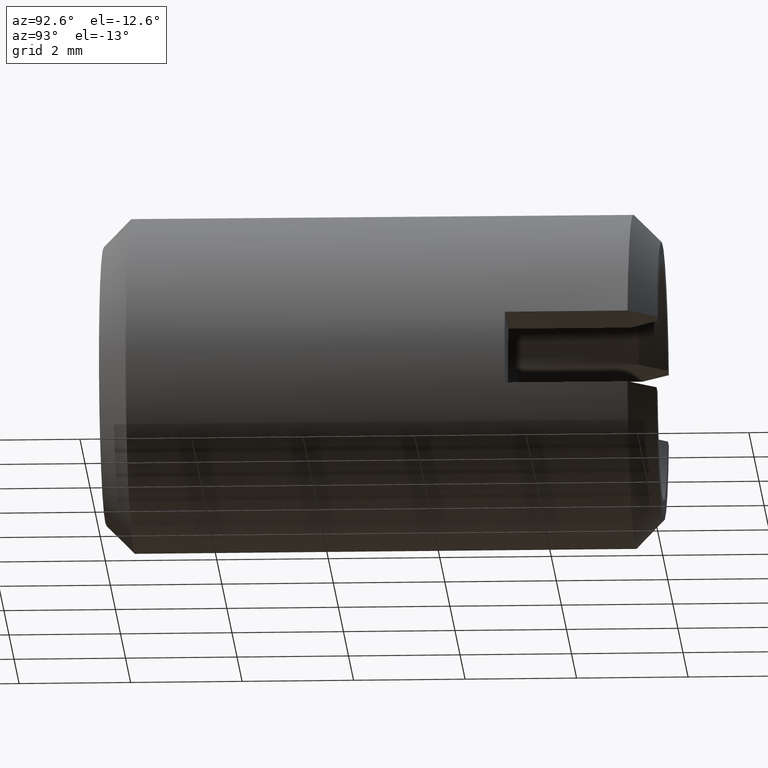
[diagram: clean part render]
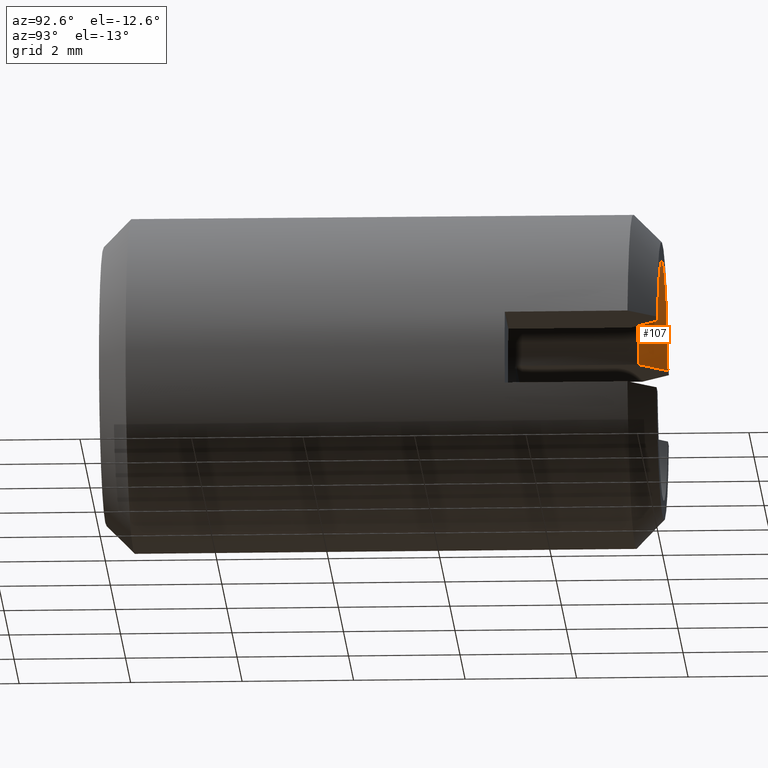
[diagram: same view with one face highlighted and labeled with its STEP entity id]
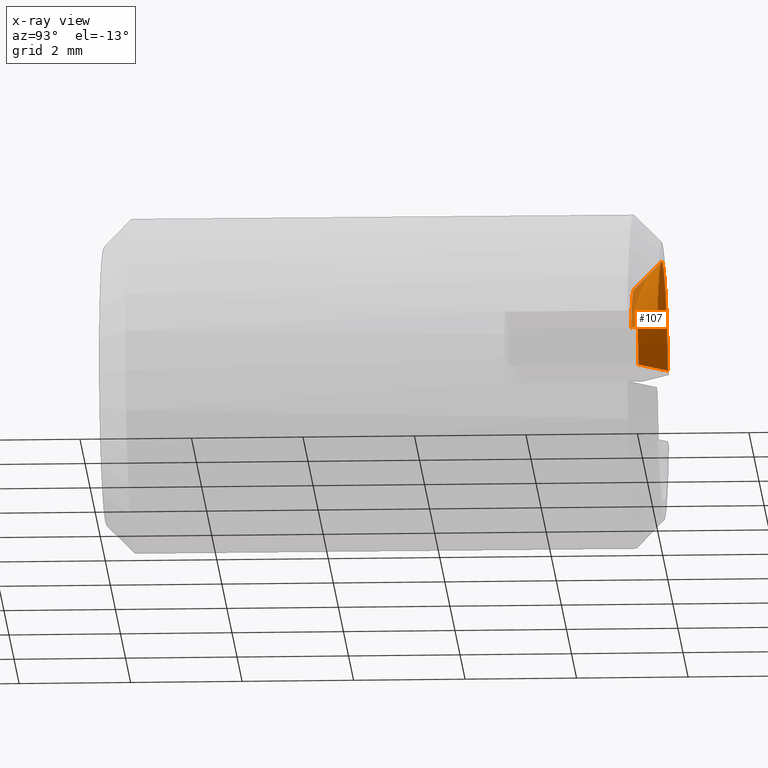
[diagram: x-ray of the same camera — body ghosted, the highlighted face saturated]
A machine part, auxiliary view. The second image highlights one B-rep face of the part: STEP entity #107.
The next image is the same camera in x-ray: the body ghosted, the highlighted face saturated — about 6% of this face is hidden behind the body in this view.
In plain terms, the highlighted conical surface has half-angle 45 deg.
Its self-contained STEP definition (entity closure, byte-faithful):
#107 = ADVANCED_FACE ( 'NONE', ( #12632 ), #9221, .F. ) ;
#389 = DIRECTION ( 'NONE',  ( 0.0000000000000000000, 0.0000000000000000000, 1.000000000000000000 ) ) ;
#647 = CARTESIAN_POINT ( 'NONE',  ( 1.516575088810305100, 9.500000000000000000, 0.6499999999999998000 ) ) ;
#1021 = CARTESIAN_POINT ( 'NONE',  ( 0.0000000000000000000, 9.500000000000000000, 0.0000000000000000000 ) ) ;
#1409 = B_SPLINE_CURVE_WITH_KNOTS ( 'NONE', 3,
 ( #3613, #6119, #3714, #14577 ),
 .UNSPECIFIED., .F., .F.,
 ( 4, 4 ),
 ( 2.168404344971008600E-019, 0.0007306790628121094900 ),
 .UNSPECIFIED. ) ;
#2270 = EDGE_CURVE ( 'NONE', #10755, #9831, #3438, .T. ) ;
#2414 = EDGE_CURVE ( 'NONE', #13921, #10755, #10904, .T. ) ;
#2890 = CARTESIAN_POINT ( 'NONE',  ( -1.516575088810305100, 9.500000000000000000, 0.6500000000000001300 ) ) ;
#3305 = CARTESIAN_POINT ( 'NONE',  ( 2.049390153191919000, 10.00000000000000000, 0.6500000000000000200 ) ) ;
#3438 = B_SPLINE_CURVE_WITH_KNOTS ( 'NONE', 3,
 ( #4055, #8897, #4208, #2890 ),
 .UNSPECIFIED., .F., .F.,
 ( 4, 4 ),
 ( 0.0000000000000000000, 0.0007306790628121099300 ),
 .UNSPECIFIED. ) ;
#3613 = CARTESIAN_POINT ( 'NONE',  ( 1.516575088810305100, 9.500000000000000000, 0.6499999999999998000 ) ) ;
#3714 = CARTESIAN_POINT ( 'NONE',  ( 1.873091889638334800, 9.831951662627185200, 0.6500000000000000200 ) ) ;
#3794 = DIRECTION ( 'NONE',  ( 0.0000000000000000000, 1.000000000000000000, 0.0000000000000000000 ) ) ;
#3999 = DIRECTION ( 'NONE',  ( 0.0000000000000000000, 1.000000000000000000, 0.0000000000000000000 ) ) ;
#4055 = CARTESIAN_POINT ( 'NONE',  ( -2.049390153191918500, 10.00000000000000000, 0.6500000000000003600 ) ) ;
#4084 = ORIENTED_EDGE ( 'NONE', *, *, #2414, .F. ) ;
#4208 = CARTESIAN_POINT ( 'NONE',  ( -1.695895357052979100, 9.664819788930671500, 0.6500000000000003600 ) ) ;
#4602 = CARTESIAN_POINT ( 'NONE',  ( -2.049390153191918500, 10.00000000000000000, 0.6500000000000003600 ) ) ;
#4917 = DIRECTION ( 'NONE',  ( 0.0000000000000000000, 0.0000000000000000000, 1.000000000000000000 ) ) ;
#5494 = EDGE_CURVE ( 'NONE', #9411, #13921, #1409, .T. ) ;
#5516 = ORIENTED_EDGE ( 'NONE', *, *, #7442, .F. ) ;
#5594 = AXIS2_PLACEMENT_3D ( 'NONE', #14331, #10764, #5769 ) ;
#5769 = DIRECTION ( 'NONE',  ( 0.0000000000000000000, 0.0000000000000000000, 1.000000000000000000 ) ) ;
#6119 = CARTESIAN_POINT ( 'NONE',  ( 1.695895357052976000, 9.664819788930675100, 0.6500000000000000200 ) ) ;
#6953 = EDGE_LOOP ( 'NONE', ( #9974, #4084, #9275, #5516 ) ) ;
#7442 = EDGE_CURVE ( 'NONE', #9831, #9411, #11241, .T. ) ;
#8897 = CARTESIAN_POINT ( 'NONE',  ( -1.873091889638334200, 9.831951662627187000, 0.6500000000000003600 ) ) ;
#9221 = CONICAL_SURFACE ( 'NONE', #13883, 1.649999999999995700, 0.7853981633974513900 ) ;
#9275 = ORIENTED_EDGE ( 'NONE', *, *, #5494, .F. ) ;
#9287 = CARTESIAN_POINT ( 'NONE',  ( -1.516575088810305100, 9.500000000000000000, 0.6500000000000001300 ) ) ;
#9411 = VERTEX_POINT ( 'NONE', #647 ) ;
#9831 = VERTEX_POINT ( 'NONE', #9287 ) ;
#9974 = ORIENTED_EDGE ( 'NONE', *, *, #2270, .F. ) ;
#10755 = VERTEX_POINT ( 'NONE', #4602 ) ;
#10764 = DIRECTION ( 'NONE',  ( -0.0000000000000000000, -1.000000000000000000, -0.0000000000000000000 ) ) ;
#10904 = CIRCLE ( 'NONE', #5594, 2.149999999999999000 ) ;
#11241 = CIRCLE ( 'NONE', #11519, 1.649999999999995700 ) ;
#11519 = AXIS2_PLACEMENT_3D ( 'NONE', #14861, #3999, #389 ) ;
#12632 = FACE_OUTER_BOUND ( 'NONE', #6953, .T. ) ;
#13883 = AXIS2_PLACEMENT_3D ( 'NONE', #1021, #3794, #4917 ) ;
#13921 = VERTEX_POINT ( 'NONE', #3305 ) ;
#14331 = CARTESIAN_POINT ( 'NONE',  ( 0.0000000000000000000, 10.00000000000000000, 0.0000000000000000000 ) ) ;
#14577 = CARTESIAN_POINT ( 'NONE',  ( 2.049390153191919000, 10.00000000000000000, 0.6500000000000000200 ) ) ;
#14861 = CARTESIAN_POINT ( 'NONE',  ( 0.0000000000000000000, 9.500000000000000000, 0.0000000000000000000 ) ) ;